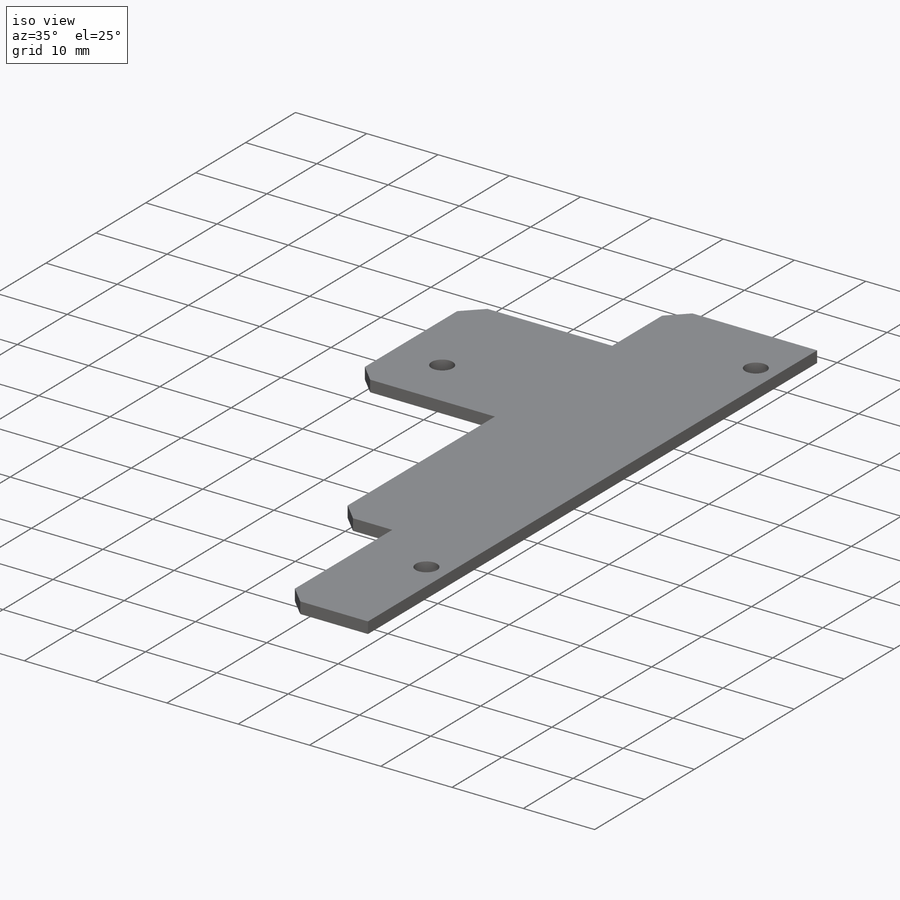
[diagram: iso view]
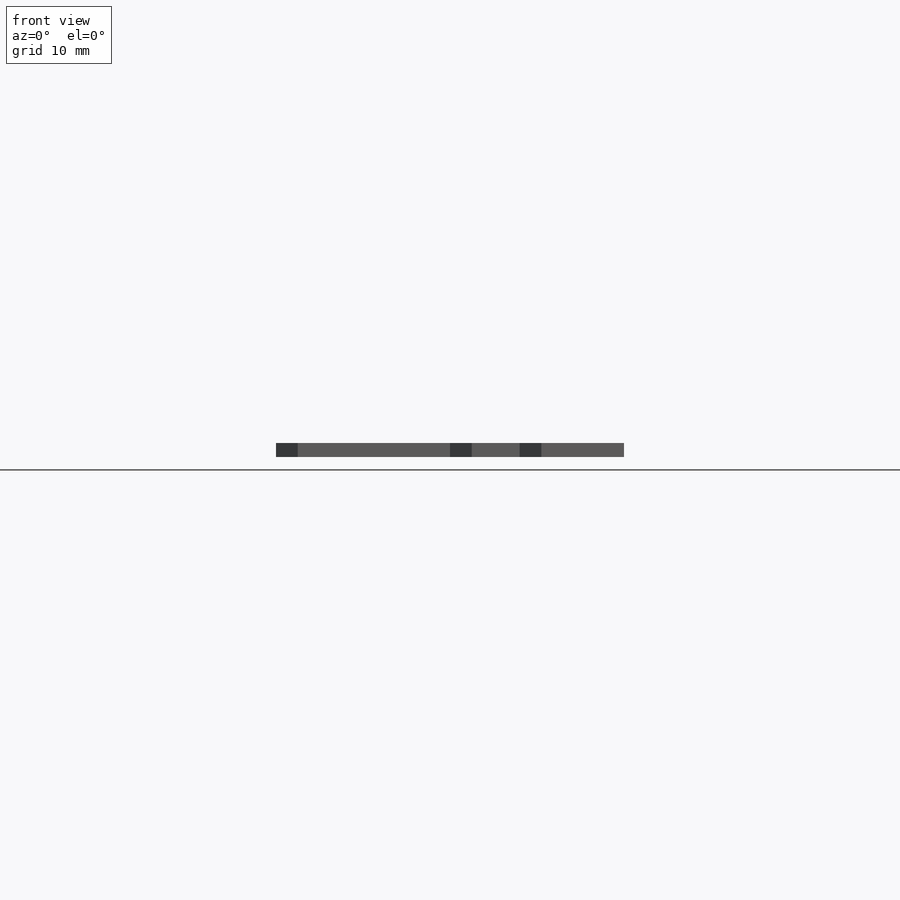
[diagram: front view]
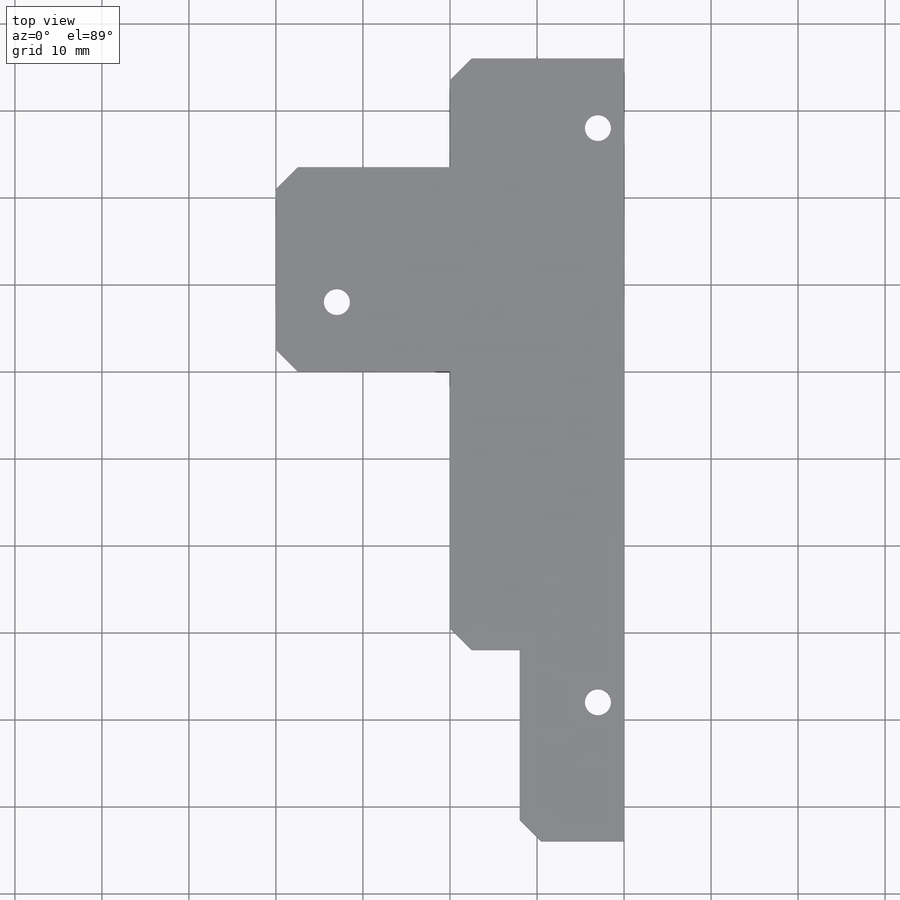
[diagram: top view]
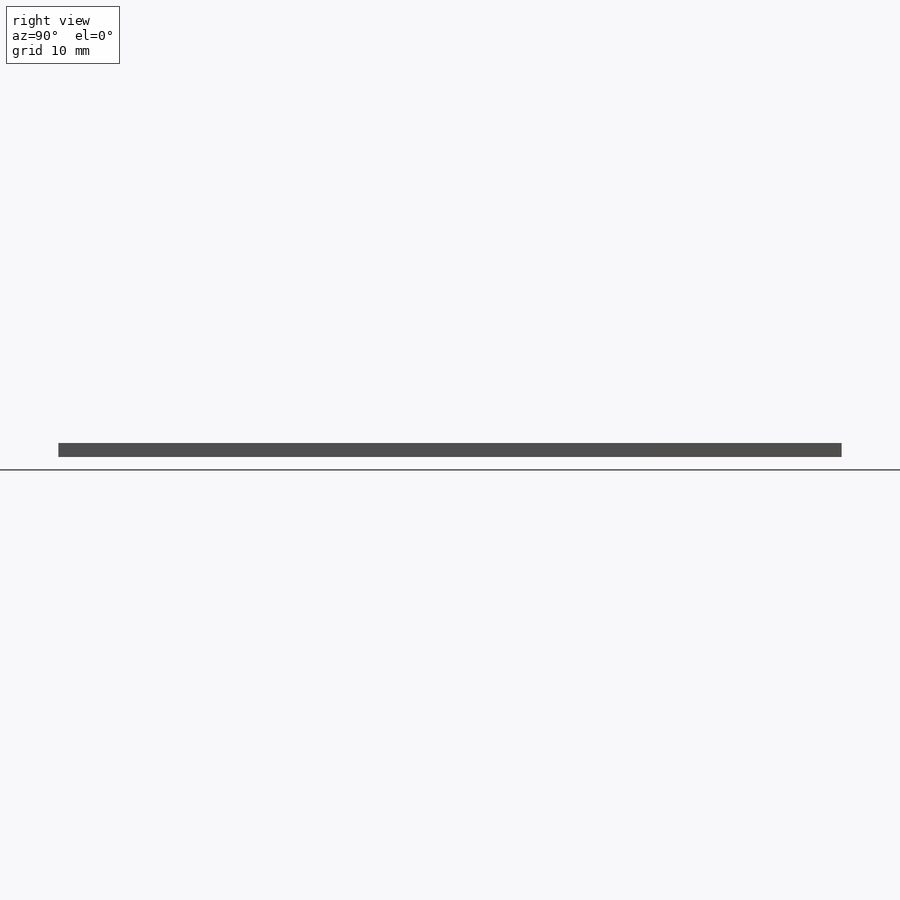
[diagram: right view]
SOLIDWORKS PART (.sldprt)
format: sldprt  version: not decoded by parser v0  size: 508,928 bytes
history: native  units: mm
features: sketch x2, material x1, extrude x1, cut_extrude x1, chamfer x1 (+15 scaffold rows collapsed)
feature tree (21):
  scaffold x15  (default folders/planes/origin — collapsed)
  material  "PE High Density"
  sketch  "Sketch1"  dims[D1=90.0mm D2=40.0mm D3=36.0mm D4=12.0mm D5=20.0mm D6=22.0mm]
  extrude  "Extrude1"  Depth=1.6mm
  sketch  "Sketch2"  dims[c1.D2=3.0mm c1.D4=3.0mm c1.D5=3.0mm c1.D1=3.0mm c1.D3=8.0mm c1.D6=8.0mm c1.D7=30.0mm c1.D8=66.0mm c1.D9=3.0mm c1.D10=15.0mm c1.D11=12.5mm c2.D6=20.0mm c2.D7=30.0mm c2.D8=~115.369611deg]
  cut_extrude  "Cut-Extrude1"  Depth=1.6mm
  chamfer  "Chamfer1"  Distance=2.5mm Angle=45deg
decode coverage: 5 of 5 modeling features carry decoded parameters
note: ~ marks probable driven/reference dimensions
note: suppression state not decoded; provenance and decode notes live in map.json
